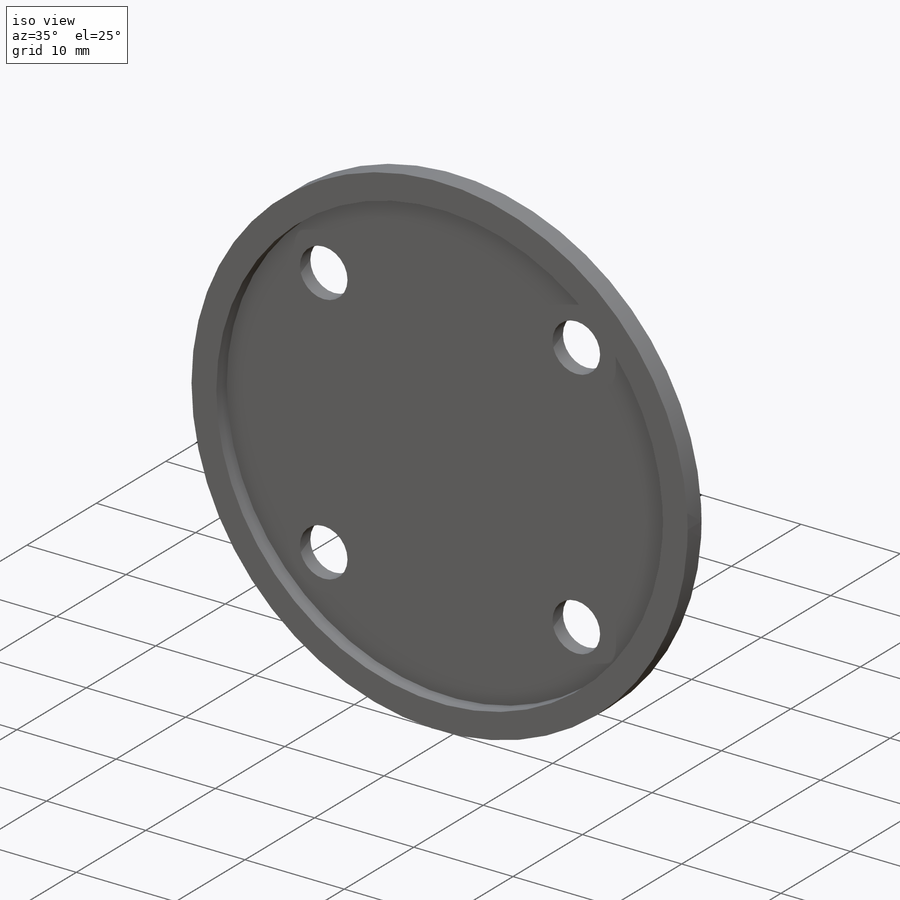
[diagram: iso view]
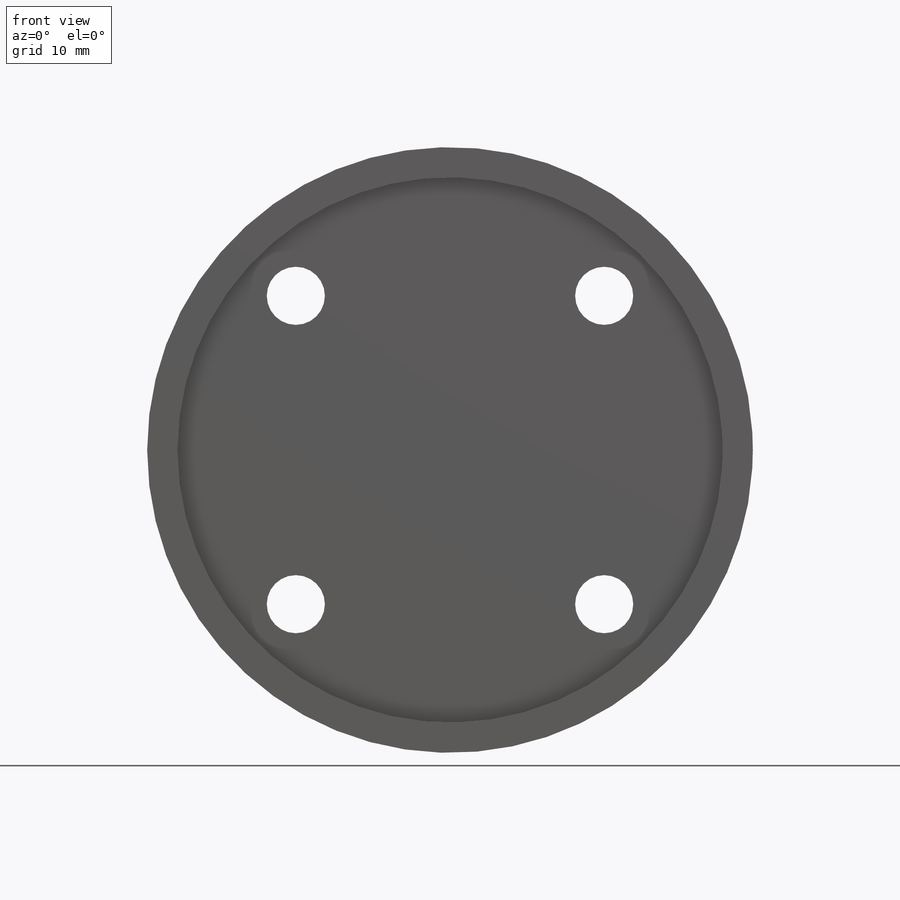
[diagram: front view]
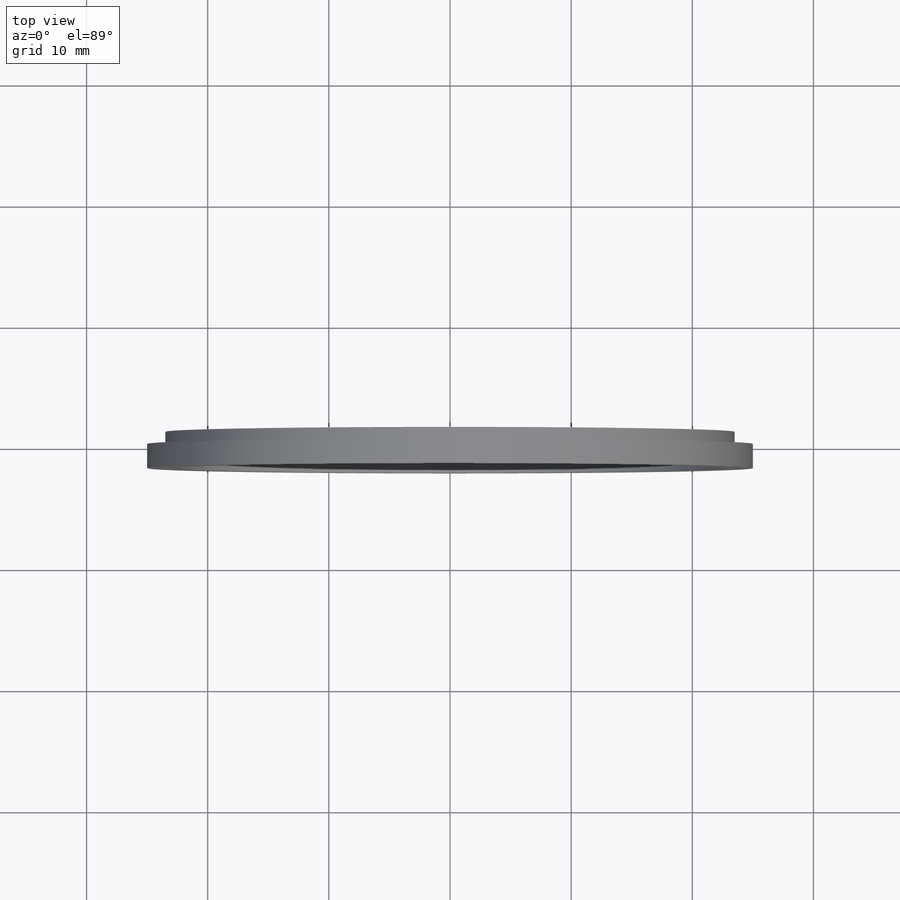
[diagram: top view]
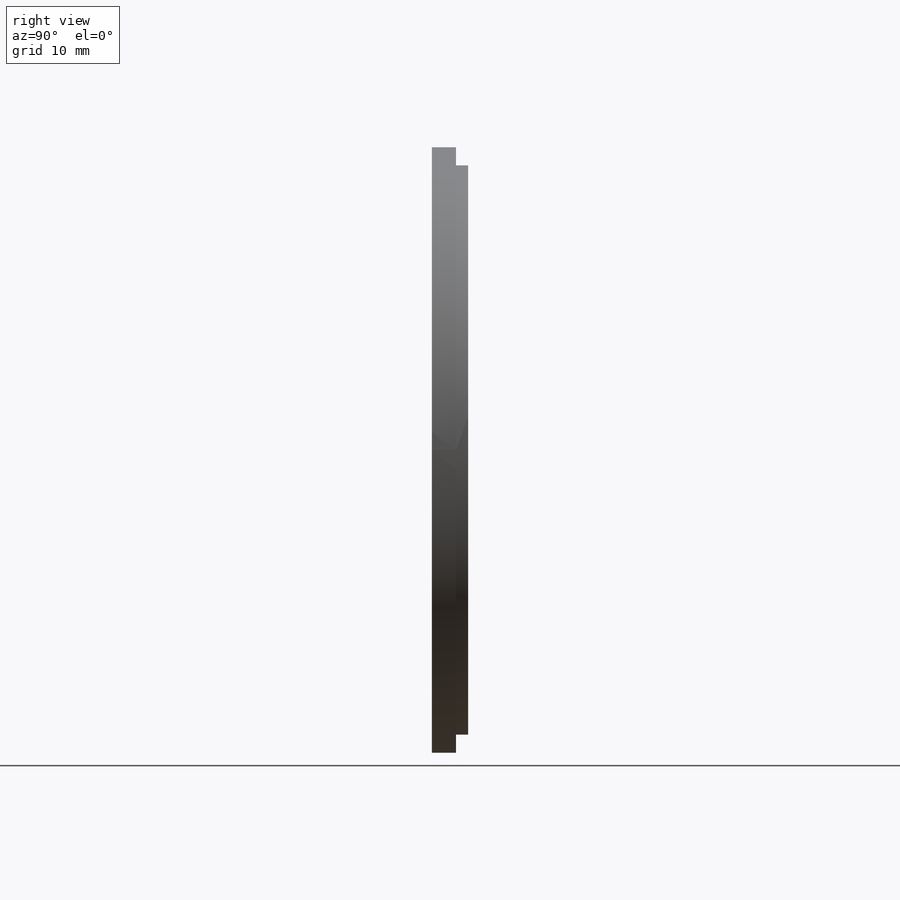
[diagram: right view]
SOLIDWORKS PART (.sldprt)
format: sldprt  version: not decoded by parser v0  size: 162,816 bytes
history: native  units: mm
features: sketch x5, extrude x3, cut_extrude x2, material x1, pattern_circular x1 (+12 scaffold rows collapsed)
feature tree (24):
  scaffold x12  (default folders/planes/origin — collapsed)
  material  "Material <not specified>"
  sketch  "Sketch1"  dims[D1=50.0mm D2=45.0mm D3=47.0mm]
  extrude  "Boss-Extrude1"  Depth=2mm
  extrude  "Boss-Extrude2"  [1 undecoded]
  sketch  "Sketch1<3>"  dims[D1=1.0mm]
  cut_extrude  "Cut-Extrude1"  [1 undecoded]
  sketch  "Sketch1<4>"
  extrude  "Boss-Extrude3"  [1 undecoded]
  sketch  "Sketch1<5>"  dims[D1=0.5mm]
  sketch  "Sketch2"  dims[c1.D1=36.0mm c1.D2=~13.126667mm c2.D2=45.0deg]
  cut_extrude  "Cut-Extrude2"  Depth=10.5mm
  pattern_circular  "CirPattern1"  Count=4 Angle=360deg
decode coverage: 7 of 11 modeling features carry decoded parameters
note: ~ marks probable driven/reference dimensions
note: 3 parameter values undecoded
summary: no parameter record found for 3 features
note: suppression state not decoded; provenance and decode notes live in map.json
